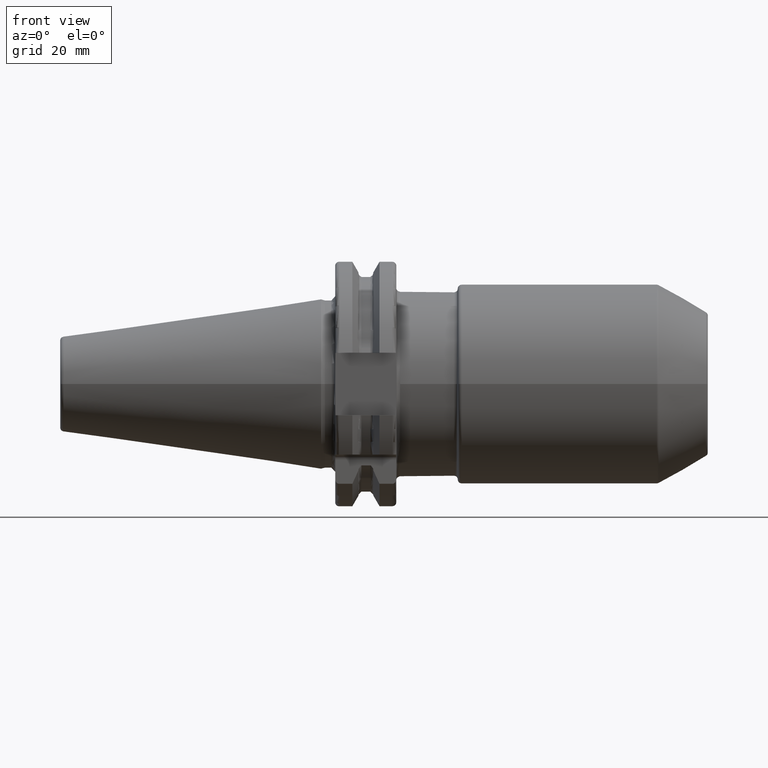
[diagram: clean part render]
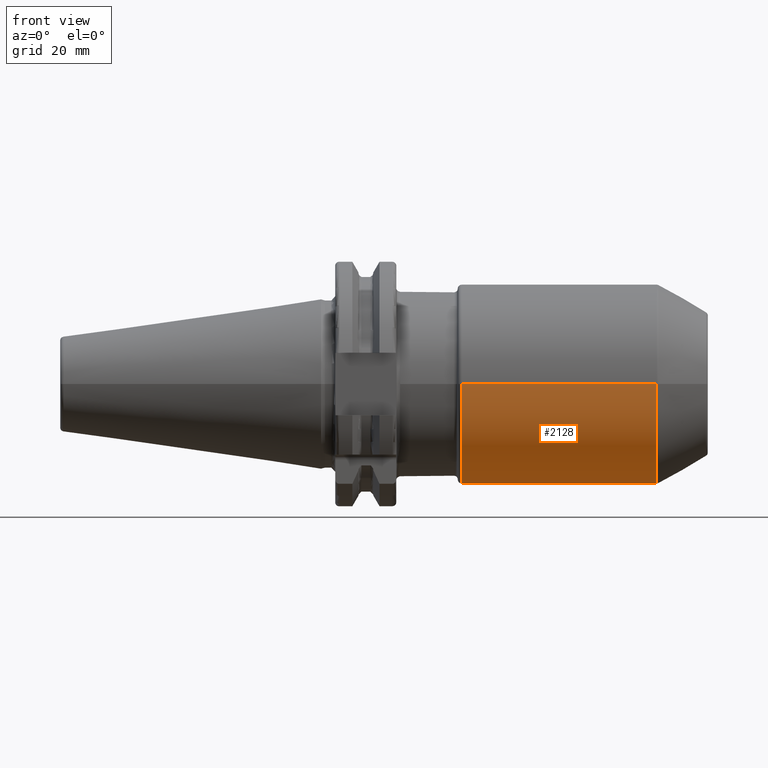
[diagram: same view with one face highlighted and labeled with its STEP entity id]
A machine part, front view. The second image highlights one B-rep face of the part: STEP entity #2128.
In plain terms, the highlighted cylindrical surface (partial cylindrical patch) has radius 26 mm, axis along (1, 0, 0).
Its self-contained STEP definition (entity closure, byte-faithful):
#237=CARTESIAN_POINT('',(8.2E1,2.6E1,0.E0));
#259=CARTESIAN_POINT('',(6.8E1,2.6E1,0.E0));
#279=CARTESIAN_POINT('',(6.8E1,2.6E1,0.E0));
#280=CARTESIAN_POINT('',(6.8E1,2.6E1,-3.684259368432E-1));
#281=CARTESIAN_POINT('',(6.805744645860E1,2.598444632443E1,-1.094529348158E0));
#282=CARTESIAN_POINT('',(6.831184768609E1,2.591712939941E1,-2.160313652466E0));
#283=CARTESIAN_POINT('',(6.872685541725E1,2.581235566659E1,-3.169037047868E0));
#284=CARTESIAN_POINT('',(6.929337399171E1,2.567950667918E1,-4.102864732119E0));
#285=CARTESIAN_POINT('',(7.000216138484E1,2.553012078175E1,-4.942174443620E0));
#286=CARTESIAN_POINT('',(7.083855699541E1,2.537828923551E1,-5.665106733990E0));
#287=CARTESIAN_POINT('',(7.178750527600E1,2.523878285310E1,-6.252590636648E0));
#288=CARTESIAN_POINT('',(7.281448161885E1,2.512786983972E1,-6.680621037051E0));
#289=CARTESIAN_POINT('',(7.388353328257E1,2.505707167825E1,-6.939183881903E0));
#290=CARTESIAN_POINT('',(7.497277383585E1,2.503202067684E1,-7.028245439494E0));
#291=CARTESIAN_POINT('',(7.606371793410E1,2.505474088805E1,-6.947523265699E0));
#292=CARTESIAN_POINT('',(7.713477240303E1,2.512348289387E1,-6.696955516997E0));
#293=CARTESIAN_POINT('',(7.816335388254E1,2.523254280425E1,-6.277466644165E0));
#294=CARTESIAN_POINT('',(7.911690219903E1,2.537092260278E1,-5.697811847940E0));
#295=CARTESIAN_POINT('',(7.996493255559E1,2.552357124579E1,-4.975990950700E0));
#296=CARTESIAN_POINT('',(8.068549905336E1,2.567473509274E1,-4.133018049137E0));
#297=CARTESIAN_POINT('',(8.126139961880E1,2.580945692699E1,-3.193205373545E0));
#298=CARTESIAN_POINT('',(8.168281208903E1,2.591573123133E1,-2.178168608225E0));
#299=CARTESIAN_POINT('',(8.194149407376E1,2.598415773724E1,-1.104281562139E0));
#300=CARTESIAN_POINT('',(8.2E1,2.6E1,-3.718409780056E-1));
#301=CARTESIAN_POINT('',(8.2E1,2.6E1,0.E0));
#303=DIRECTION('',(-1.E0,0.E0,2.156849294888E-13));
#304=VECTOR('',#303,3.195E1);
#305=CARTESIAN_POINT('',(6.8E1,2.6E1,0.E0));
#306=LINE('',#305,#304);
#307=CARTESIAN_POINT('',(3.605E1,0.E0,0.E0));
#308=DIRECTION('',(-1.E0,0.E0,0.E0));
#309=DIRECTION('',(0.E0,1.E0,0.E0));
#310=AXIS2_PLACEMENT_3D('',#307,#308,#309);
#312=DIRECTION('',(-1.E0,0.E0,-1.635472734822E-13));
#313=VECTOR('',#312,5.068205080757E1);
#314=CARTESIAN_POINT('',(8.673205080757E1,-2.6E1,1.382767817627E-12));
#315=LINE('',#314,#313);
#316=CARTESIAN_POINT('',(8.673205080757E1,0.E0,0.E0));
#317=DIRECTION('',(-1.E0,0.E0,0.E0));
#318=DIRECTION('',(0.E0,1.E0,0.E0));
#319=AXIS2_PLACEMENT_3D('',#316,#317,#318);
#321=DIRECTION('',(-1.E0,0.E0,2.939393582341E-13));
#322=VECTOR('',#321,4.732050807569E0);
#323=CARTESIAN_POINT('',(8.673205080757E1,2.6E1,-1.389343936669E-12));
#324=LINE('',#323,#322);
#1668=CARTESIAN_POINT('',(8.673205080757E1,2.6E1,0.E0));
#1669=CARTESIAN_POINT('',(8.673205080757E1,-2.6E1,0.E0));
#1670=VERTEX_POINT('',#1668);
#1671=VERTEX_POINT('',#1669);
#1693=VERTEX_POINT('',#237);
#1694=VERTEX_POINT('',#259);
#1715=CARTESIAN_POINT('',(3.605E1,2.6E1,6.892725538006E-12));
#1716=VERTEX_POINT('',#1715);
#1729=CARTESIAN_POINT('',(3.605E1,-2.6E1,0.E0));
#1730=VERTEX_POINT('',#1729);
#2114=CARTESIAN_POINT('',(1.50025E1,0.E0,0.E0));
#2115=DIRECTION('',(1.E0,0.E0,0.E0));
#2116=DIRECTION('',(0.E0,-1.E0,0.E0));
#2117=AXIS2_PLACEMENT_3D('',#2114,#2115,#2116);
#2118=CYLINDRICAL_SURFACE('',#2117,2.6E1);
#2119=ORIENTED_EDGE('',*,*,#2105,.F.);
#2120=ORIENTED_EDGE('',*,*,#2080,.T.);
#2121=ORIENTED_EDGE('',*,*,#2033,.T.);
#2122=ORIENTED_EDGE('',*,*,#2077,.F.);
#2124=ORIENTED_EDGE('',*,*,#2123,.F.);
#2125=ORIENTED_EDGE('',*,*,#2073,.T.);
#2126=EDGE_LOOP('',(#2119,#2120,#2121,#2122,#2124,#2125));
#2127=FACE_OUTER_BOUND('',#2126,.F.);
#2128=ADVANCED_FACE('',(#2127),#2118,.T.);
#302=B_SPLINE_CURVE_WITH_KNOTS('',3,(#279,#280,#281,#282,#283,#284,#285,#286,
#287,#288,#289,#290,#291,#292,#293,#294,#295,#296,#297,#298,#299,#300,#301),
.UNSPECIFIED.,.F.,.F.,(4,1,1,1,1,1,1,1,1,1,1,1,1,1,1,1,1,1,1,1,4),(0.E0,5.E-2,
1.E-1,1.5E-1,2.E-1,2.5E-1,3.E-1,3.5E-1,4.E-1,4.5E-1,5.E-1,5.5E-1,6.E-1,6.5E-1,
7.E-1,7.5E-1,8.E-1,8.5E-1,9.E-1,9.5E-1,1.E0),.UNSPECIFIED.);
#311=CIRCLE('',#310,2.6E1);
#320=CIRCLE('',#319,2.6E1);
#2033=EDGE_CURVE('',#1716,#1730,#311,.T.);
#2073=EDGE_CURVE('',#1670,#1693,#324,.T.);
#2077=EDGE_CURVE('',#1671,#1730,#315,.T.);
#2080=EDGE_CURVE('',#1694,#1716,#306,.T.);
#2105=EDGE_CURVE('',#1694,#1693,#302,.T.);
#2123=EDGE_CURVE('',#1670,#1671,#320,.T.);